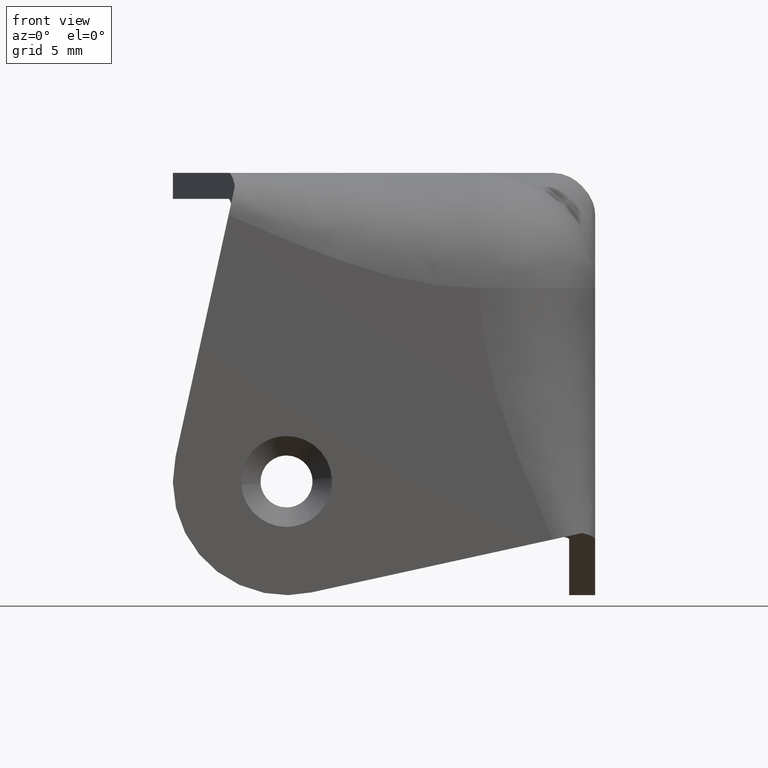
[diagram: clean part render]
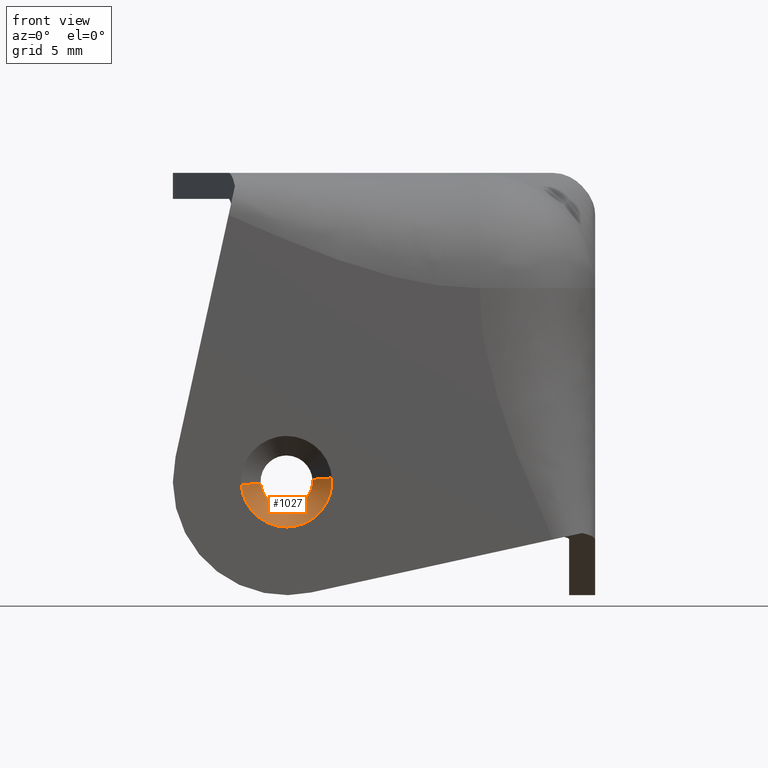
[diagram: same view with one face highlighted and labeled with its STEP entity id]
A machine part, front view. The second image highlights one B-rep face of the part: STEP entity #1027.
In plain terms, the highlighted face is a freeform B-spline surface patch.
Its self-contained STEP definition (entity closure, byte-faithful):
#718=CARTESIAN_POINT('',(-17.410449371901610,1.200000000000000,6.817438227683023));
#719=VERTEX_POINT('',#718);
#720=CARTESIAN_POINT('',(-19.0,1.200000000000000,5.400000000000000));
#721=VERTEX_POINT('',#720);
#722=CARTESIAN_POINT('',(-17.410449371901610,1.200000000000000,6.817438227683023));
#723=CARTESIAN_POINT('',(-17.573244471508122,1.200000000000000,5.400000000000001));
#724=CARTESIAN_POINT('',(-19.0,1.200000000000000,5.400000000000000));
#732=(BOUNDED_CURVE()B_SPLINE_CURVE(2,(#722,#723,#724),.UNSPECIFIED.,.F.,.U.)B_SPLINE_CURVE_WITH_KNOTS((3,3),(0.269767906791037,0.500000000000000),.UNSPECIFIED.)CURVE()GEOMETRIC_REPRESENTATION_ITEM()RATIONAL_B_SPLINE_CURVE((0.957343438767698,0.730266324583472,1.0))REPRESENTATION_ITEM(''));
#733=EDGE_CURVE('',#719,#721,#732,.T.);
#772=CARTESIAN_POINT('',(-20.597015685770401,1.199999999999997,6.902322472373179));
#773=VERTEX_POINT('',#772);
#779=CARTESIAN_POINT('',(-19.0,1.200000000000000,5.400000000000000));
#780=CARTESIAN_POINT('',(-20.505129835113372,1.200000000000000,5.400000000000000));
#781=CARTESIAN_POINT('',(-20.597015685770408,1.200000000000000,6.902322472373179));
#789=(BOUNDED_CURVE()B_SPLINE_CURVE(2,(#779,#780,#781),.UNSPECIFIED.,.F.,.U.)B_SPLINE_CURVE_WITH_KNOTS((3,3),(0.500000000000000,0.739332976895763),.UNSPECIFIED.)CURVE()GEOMETRIC_REPRESENTATION_ITEM()RATIONAL_B_SPLINE_CURVE((1.0,0.719603976115177,0.976072073079076))REPRESENTATION_ITEM(''));
#790=EDGE_CURVE('',#721,#773,#789,.T.);
#817=CARTESIAN_POINT('',(-17.404932266026801,1.199999999999503,7.125534553168400));
#818=VERTEX_POINT('',#817);
#819=CARTESIAN_POINT('',(-17.404932266026794,1.199999999999502,7.125534553168400));
#820=CARTESIAN_POINT('',(-17.400000000000006,1.200000000000000,7.062864171216098));
#821=CARTESIAN_POINT('',(-17.399999999999999,1.200000000000000,7.0));
#822=CARTESIAN_POINT('',(-17.399999999999999,1.200000000000001,6.908419708230912));
#823=CARTESIAN_POINT('',(-17.410449371901617,1.200000000000000,6.817438227683023));
#831=(BOUNDED_CURVE()B_SPLINE_CURVE(2,(#819,#820,#821,#822,#823),.UNSPECIFIED.,.F.,.U.)B_SPLINE_CURVE_WITH_KNOTS((3,2,3),(0.236331300631948,0.250000000000000,0.269767906791037),.UNSPECIFIED.)CURVE()GEOMETRIC_REPRESENTATION_ITEM()RATIONAL_B_SPLINE_CURVE((0.969723356170107,0.983986122580392,1.0,0.976840456603075,0.957343438767698))REPRESENTATION_ITEM(''));
#832=EDGE_CURVE('',#818,#719,#831,.T.);
#920=CARTESIAN_POINT('',(-16.208631465541000,-1.566365E-011,7.219685468158296));
#921=VERTEX_POINT('',#920);
#922=CARTESIAN_POINT('',(-17.404932266026801,1.199999999999503,7.125534553168400));
#923=CARTESIAN_POINT('',(-16.208631465541000,-1.566365E-011,7.219685468158296));
#924=QUASI_UNIFORM_CURVE('',1,(#922,#923),.UNSPECIFIED.,.F.,.U.);
#925=EDGE_CURVE('',#818,#921,#924,.T.);
#942=CARTESIAN_POINT('',(-21.791368534459000,-1.566442E-011,6.780314531841703));
#943=VERTEX_POINT('',#942);
#959=CARTESIAN_POINT('',(-20.597015685770401,1.199999999999997,6.902322472373179));
#960=CARTESIAN_POINT('',(-21.791368534459000,-1.566442E-011,6.780314531841703));
#961=QUASI_UNIFORM_CURVE('',1,(#959,#960),.UNSPECIFIED.,.F.,.U.);
#962=EDGE_CURVE('',#773,#943,#961,.T.);
#968=CARTESIAN_POINT('',(-20.569012423612513,1.230000000000000,6.925766184225986));
#969=CARTESIAN_POINT('',(-20.567098875130451,1.230000000000000,6.901452245440381));
#970=CARTESIAN_POINT('',(-20.441979433668291,1.230000000000000,5.311659005746275));
#971=CARTESIAN_POINT('',(-18.876819219707279,1.230000000000000,5.434839786038991));
#972=CARTESIAN_POINT('',(-17.311659005746279,1.230000000000000,5.558020566331710));
#973=CARTESIAN_POINT('',(-17.435713605460041,1.230000000000000,7.134283708759003));
#974=CARTESIAN_POINT('',(-17.436582304756740,1.230000000000000,7.145321579877022));
#975=CARTESIAN_POINT('',(-21.828969374612186,-0.030750000000000,6.866154538852043));
#976=CARTESIAN_POINT('',(-21.825519197946214,-0.030750000000000,6.822315887758189));
#977=CARTESIAN_POINT('',(-21.599925657233456,-0.030750000000000,3.955878172303351));
#978=CARTESIAN_POINT('',(-18.777901914768400,-0.030750000000000,4.177976257534949));
#979=CARTESIAN_POINT('',(-15.955878172303343,-0.030750000000000,4.400074342766548));
#980=CARTESIAN_POINT('',(-16.179551776214012,-0.030750000000000,7.242116948133472));
#981=CARTESIAN_POINT('',(-16.181118063178424,-0.030750000000000,7.262018510978905));
#989=(BOUNDED_SURFACE()B_SPLINE_SURFACE(2,1,((#968,#975),(#969,#976),(#970,#977),(#971,#978),(#972,#979),(#973,#980),(#974,#981)),.UNSPECIFIED.,.F.,.F.,.U.)B_SPLINE_SURFACE_WITH_KNOTS((3,1,2,1,3),(2,2),(0.0,0.105075201115102,4.795215367865657,9.485355534616213,9.532546357264165),(0.0,1.0),.UNSPECIFIED.)GEOMETRIC_REPRESENTATION_ITEM()RATIONAL_B_SPLINE_SURFACE(((1.013123622227860,1.013123622227860),(1.006561811113930,1.006561811113930),(0.707106781186548,0.707106781186548),(1.0,1.0),(0.707106781186548,0.707106781186548),(1.002947006155978,1.002947006155978),(1.005894012311956,1.005894012311956)))REPRESENTATION_ITEM('')SURFACE());
#990=ORIENTED_EDGE('',*,*,#832,.T.);
#991=ORIENTED_EDGE('',*,*,#733,.T.);
#992=ORIENTED_EDGE('',*,*,#790,.T.);
#993=ORIENTED_EDGE('',*,*,#962,.T.);
#994=CARTESIAN_POINT('',(-19.0,0.0,4.200000000000000));
#995=VERTEX_POINT('',#994);
#996=CARTESIAN_POINT('',(-19.0,0.0,4.200000000000000));
#997=CARTESIAN_POINT('',(-21.588293376421412,0.0,4.200000000000001));
#998=CARTESIAN_POINT('',(-21.791368534458996,-1.566442E-011,6.780314531841703));
#1006=(BOUNDED_CURVE()B_SPLINE_CURVE(2,(#996,#997,#998),.UNSPECIFIED.,.F.,.U.)B_SPLINE_CURVE_WITH_KNOTS((3,3),(0.500000000000000,0.736331300618138),.UNSPECIFIED.)CURVE()GEOMETRIC_REPRESENTATION_ITEM()RATIONAL_B_SPLINE_CURVE((1.0,0.723120658622336,0.969723356141286))REPRESENTATION_ITEM(''));
#1007=EDGE_CURVE('',#995,#943,#1006,.T.);
#1008=ORIENTED_EDGE('',*,*,#1007,.F.);
#1009=CARTESIAN_POINT('',(-16.208631465541000,-1.566365E-011,7.219685468158296));
#1010=CARTESIAN_POINT('',(-16.200000000000003,0.0,7.110012299741130));
#1011=CARTESIAN_POINT('',(-16.199999999999999,0.0,7.0));
#1012=CARTESIAN_POINT('',(-16.200000000000003,0.0,4.200000000000001));
#1013=CARTESIAN_POINT('',(-19.0,0.0,4.200000000000000));
#1021=(BOUNDED_CURVE()B_SPLINE_CURVE(2,(#1009,#1010,#1011,#1012,#1013),.UNSPECIFIED.,.F.,.U.)B_SPLINE_CURVE_WITH_KNOTS((3,2,3),(0.236331300618138,0.250000000000000,0.500000000000000),.UNSPECIFIED.)CURVE()GEOMETRIC_REPRESENTATION_ITEM()RATIONAL_B_SPLINE_CURVE((0.969723356141287,0.983986122564212,1.0,0.707106781186547,1.0))REPRESENTATION_ITEM(''));
#1022=EDGE_CURVE('',#921,#995,#1021,.T.);
#1023=ORIENTED_EDGE('',*,*,#1022,.F.);
#1024=ORIENTED_EDGE('',*,*,#925,.F.);
#1025=EDGE_LOOP('',(#990,#991,#992,#993,#1008,#1023,#1024));
#1026=FACE_OUTER_BOUND('',#1025,.T.);
#1027=ADVANCED_FACE('',(#1026),#989,.F.);